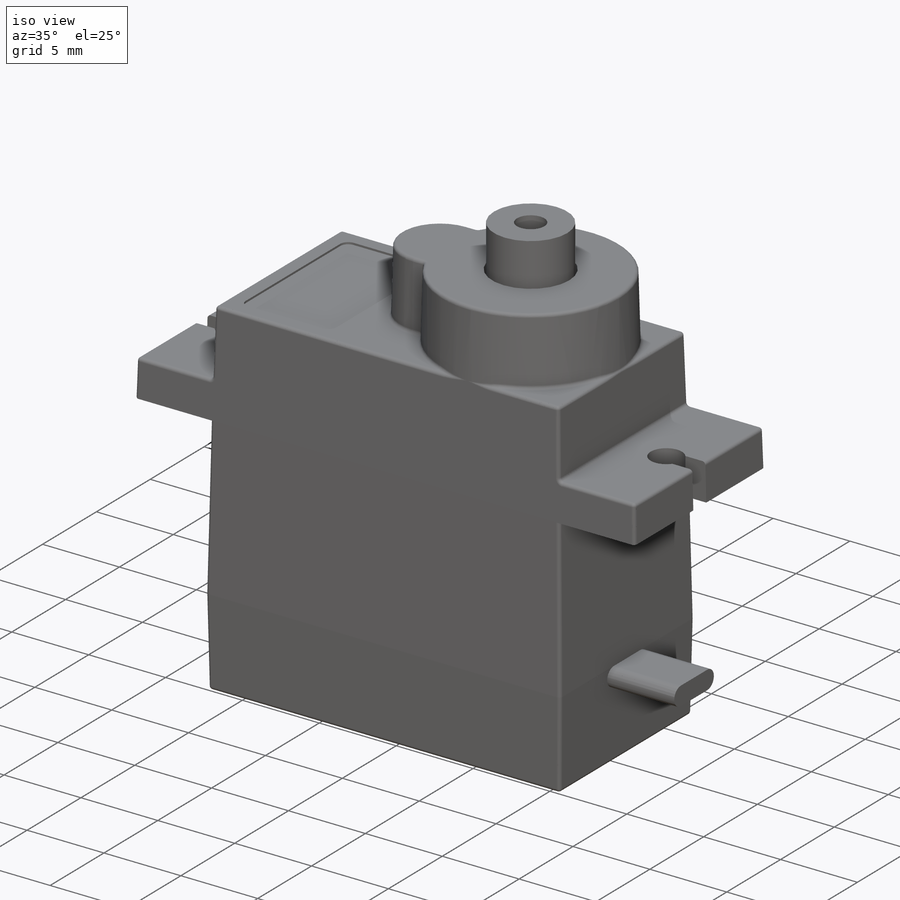
[diagram: iso view]
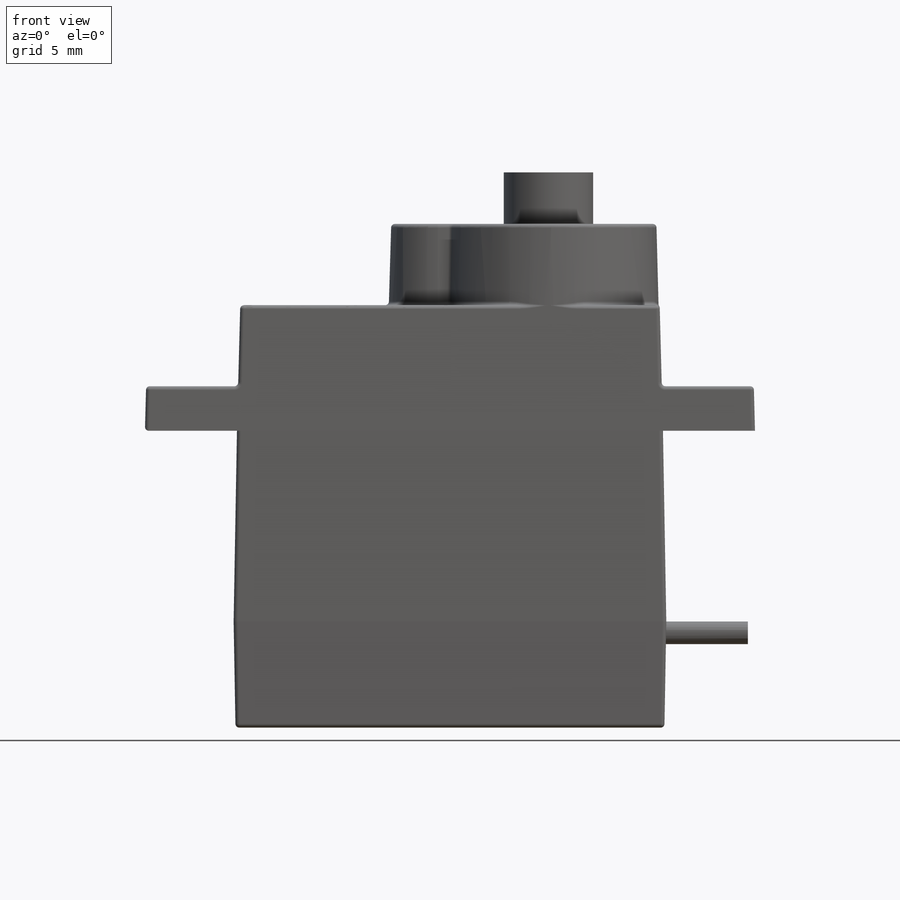
[diagram: front view]
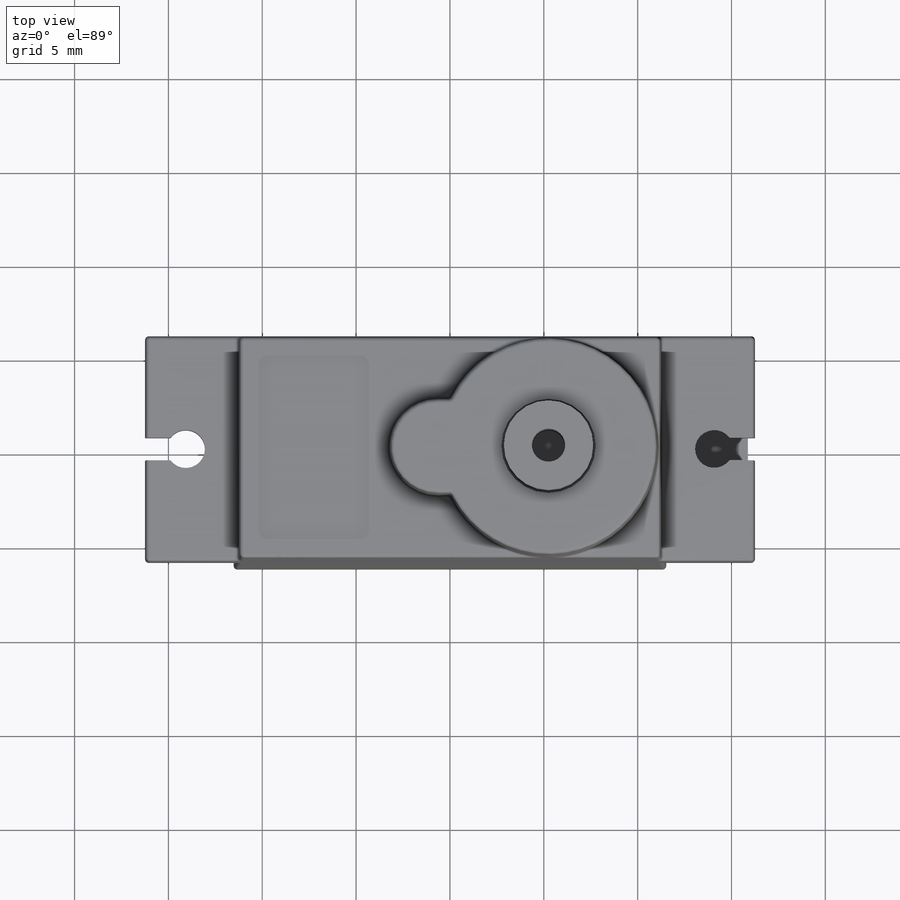
[diagram: top view]
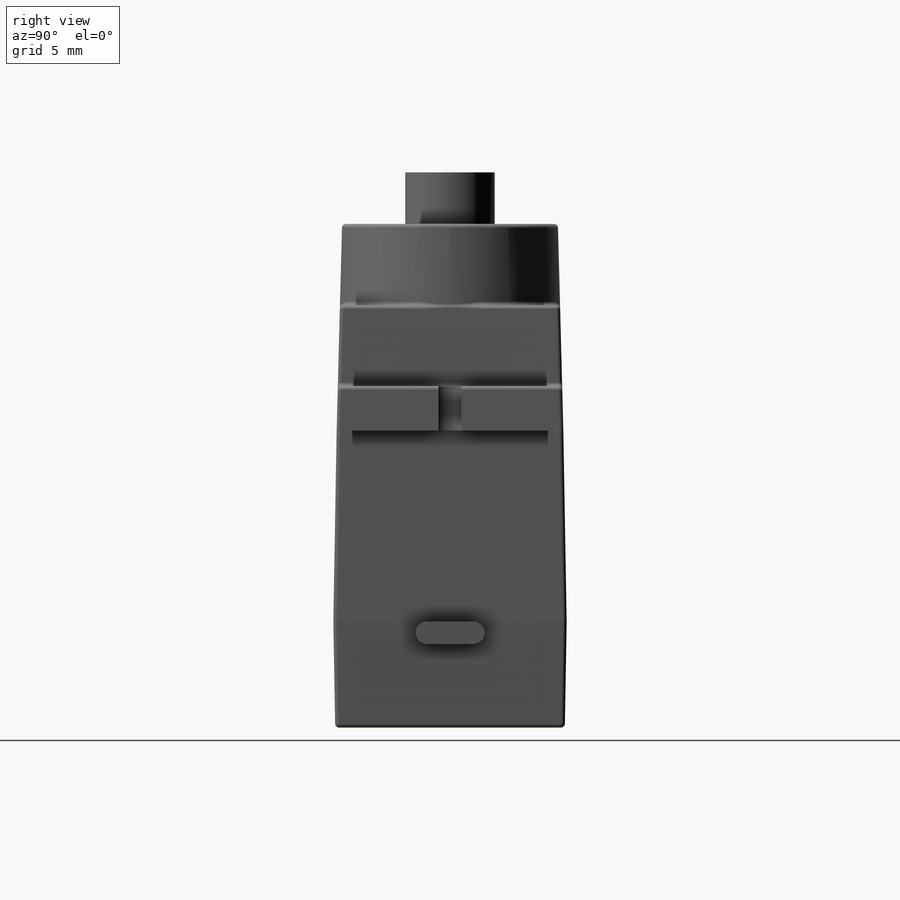
[diagram: right view]
SOLIDWORKS PART (.sldprt)
format: sldprt  version: not decoded by parser v0  size: 573,440 bytes
history: native  units: mm
features: sketch x11, extrude x7, cut_extrude x4, fillet x2, material x1 (+12 scaffold rows collapsed)
feature tree (37):
  scaffold x12  (default folders/planes/origin — collapsed)
  material  "Material <not specified>"
  sketch  "Sketch8"  dims[D1=32.5mm D2=12.0777mm]
  extrude  "Body Mounting Plate"  Depth=2.3749mm
  sketch  "Sketch9"  dims[D1=22.6949mm]
  extrude  "Body Top"  Depth=4.318mm
  sketch  "Sketch10"  dims[D1=0.0mm]
  extrude  "Body Middle"  Depth=10.16mm
  sketch  "Sketch11"  dims[D1=0.0mm]
  extrude  "Body Bodom"  Depth=22.5044mm
  sketch  "Sketch12"  dims[c1.D1=5.207mm c1.D2=2.6035mm c1.D4=~5.86359mm c2.D2=14.4399mm c2.D1=~5.90296mm c2.D3=21.5mm c2.D4=11.0mm c3.D3=11.0mm c3.D4=~5.86359mm]
  extrude  "Body Topper"  Depth=26.8351mm
  sketch  "Sketch13"  dims[D1=4.7625mm]
  extrude  "Spindle"  Depth=29.5783mm
  sketch  "Sketch18"  dims[D1=0.127mm]
  cut_extrude  "Spindle Opening"  Depth=3.175mm
  sketch  "Sketch14"  dims[D1=1.778mm]
  cut_extrude  "Spindle Screw Hole"  Depth=6.35mm
  fillet  "Body Fillets 1"  Radius=0.2032mm
  fillet  "Body Fillets 2"  Radius=0.2032mm
  sketch  "Sketch16"  dims[D3=2.032mm D1=1.2065mm D2=28.1432mm D4=17.78mm]
  cut_extrude  "Mounting Holes"  [1 undecoded]
  sketch  "Sketch17"  dims[c1.D5=0.508mm c1.D1=5.8801mm c1.D2=1.016mm c1.D3=1.016mm c1.D4=1.016mm c2.D2=1.143mm c2.D3=1.143mm c2.D4=1.143mm]
  cut_extrude  "Label Recess"  Depth=0.127mm
  sketch  "Sketch15"  dims[D1=~0.60325mm D2=3.683mm]
  extrude  "Wiring"  Depth=15.875mm
decode coverage: 23 of 24 modeling features carry decoded parameters
note: ~ marks probable driven/reference dimensions
note: 1 parameter value undecoded
note: suppression state not decoded; provenance and decode notes live in map.json
